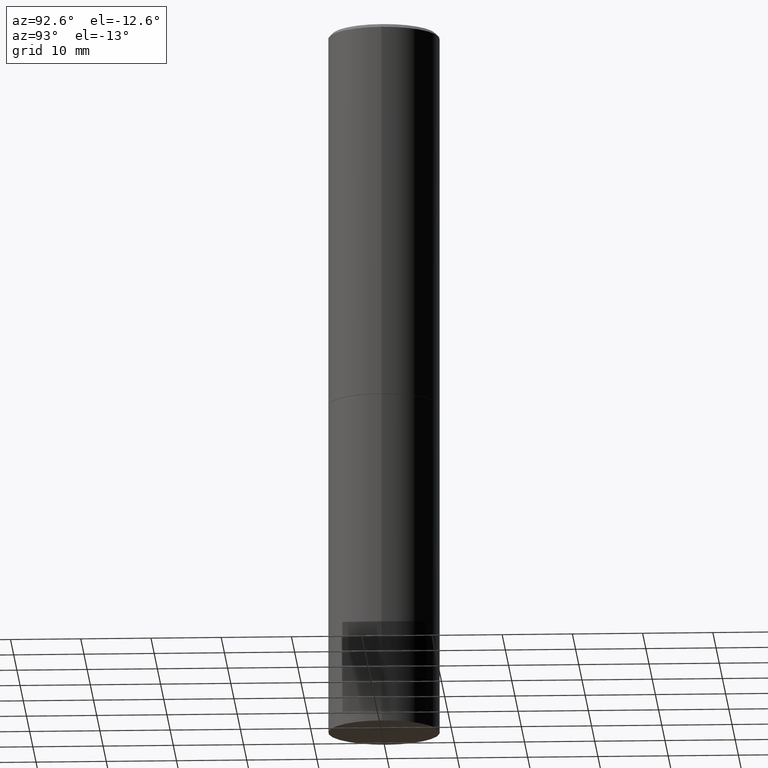
[diagram: clean part render]
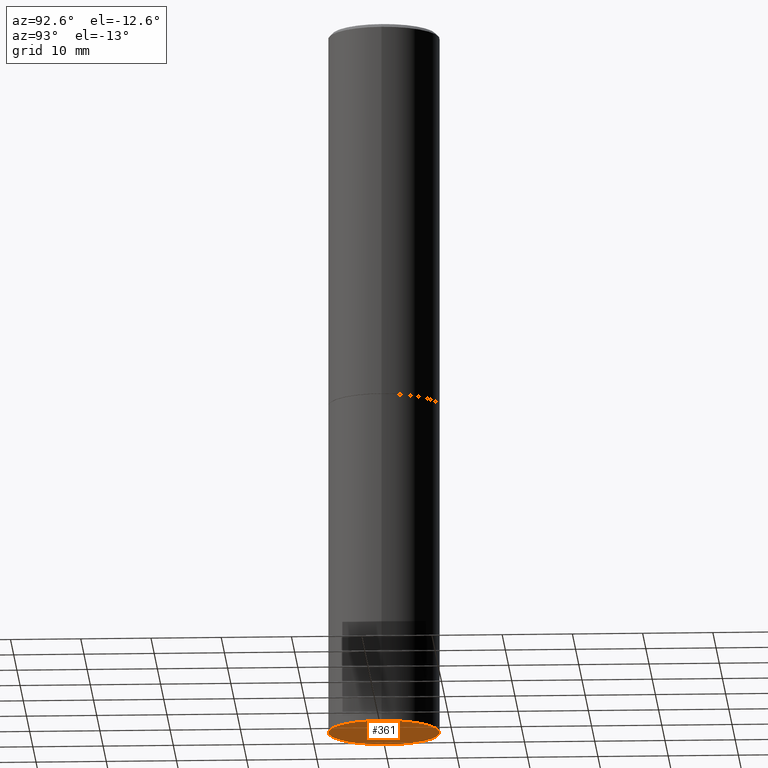
[diagram: same view with one face highlighted and labeled with its STEP entity id]
A machine part, auxiliary view. The second image highlights one B-rep face of the part: STEP entity #361.
In plain terms, the highlighted planar face has unit normal (0, -0, -1).
Its self-contained STEP definition (entity closure, byte-faithful):
#8 = FACE_OUTER_BOUND ( 'NONE', #285, .T. ) ;
#24 = DIRECTION ( 'NONE',  ( -1.000000000000000000, 6.982962677686265922E-15, -4.876176775795935793E-29 ) ) ;
#27 = DIRECTION ( 'NONE',  ( 1.000000000000000000, -6.982962677686269077E-15, 0.000000000000000000 ) ) ;
#29 = VERTEX_POINT ( 'NONE', #106 ) ;
#48 = DIRECTION ( 'NONE',  ( -2.445468806185136597E-29, 3.491481338843145583E-15, 1.000000000000000000 ) ) ;
#61 = EDGE_CURVE ( 'NONE', #29, #227, #129, .T. ) ;
#106 = CARTESIAN_POINT ( 'NONE',  ( 0.3125000000000000000, -1.614810119214954068E-14, -4.000000000000000000 ) ) ;
#129 = CIRCLE ( 'NONE', #343, 0.3125000000000000000 ) ;
#137 = DIRECTION ( 'NONE',  ( 1.000000000000000000, -6.982962677686269077E-15, 0.000000000000000000 ) ) ;
#141 = EDGE_CURVE ( 'NONE', #227, #29, #215, .T. ) ;
#189 = AXIS2_PLACEMENT_3D ( 'NONE', #331, #48, #27 ) ;
#191 = DIRECTION ( 'NONE',  ( -2.445468806185136597E-29, 3.491481338843145583E-15, 1.000000000000000000 ) ) ;
#208 = ORIENTED_EDGE ( 'NONE', *, *, #141, .F. ) ;
#215 = CIRCLE ( 'NONE', #189, 0.3125000000000000000 ) ;
#227 = VERTEX_POINT ( 'NONE', #297 ) ;
#234 = PLANE ( 'NONE',  #329 ) ;
#260 = DIRECTION ( 'NONE',  ( 2.438088387897960049E-29, -3.491481338843145188E-15, -1.000000000000000000 ) ) ;
#263 = CARTESIAN_POINT ( 'NONE',  ( 2.182175836777055771E-15, 0.3124999999999860667, -4.000000000000000888 ) ) ;
#280 = ORIENTED_EDGE ( 'NONE', *, *, #61, .F. ) ;
#285 = EDGE_LOOP ( 'NONE', ( #280, #208 ) ) ;
#297 = CARTESIAN_POINT ( 'NONE',  ( -0.3125000000000000000, -8.472215550956819896E-15, -4.000000000000000000 ) ) ;
#329 = AXIS2_PLACEMENT_3D ( 'NONE', #263, #260, #24 ) ;
#331 = CARTESIAN_POINT ( 'NONE',  ( 9.781875224740546387E-29, -1.396592535537258233E-14, -4.000000000000000000 ) ) ;
#343 = AXIS2_PLACEMENT_3D ( 'NONE', #356, #191, #137 ) ;
#356 = CARTESIAN_POINT ( 'NONE',  ( 9.781875224740546387E-29, -1.396592535537258233E-14, -4.000000000000000000 ) ) ;
#361 = ADVANCED_FACE ( 'NONE', ( #8 ), #234, .T. ) ;